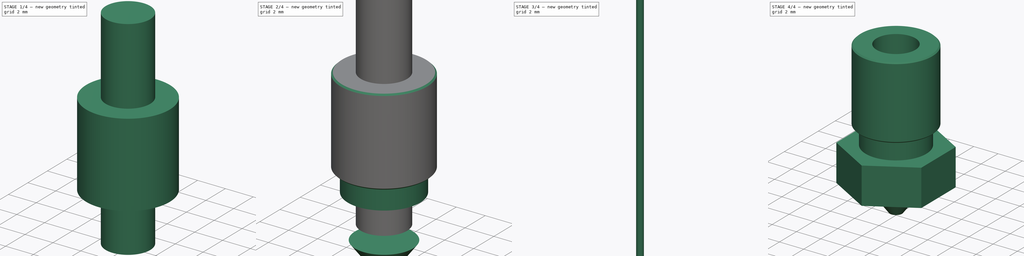
[diagram: build sequence overview — one tinted view per stage of 4, left to right]
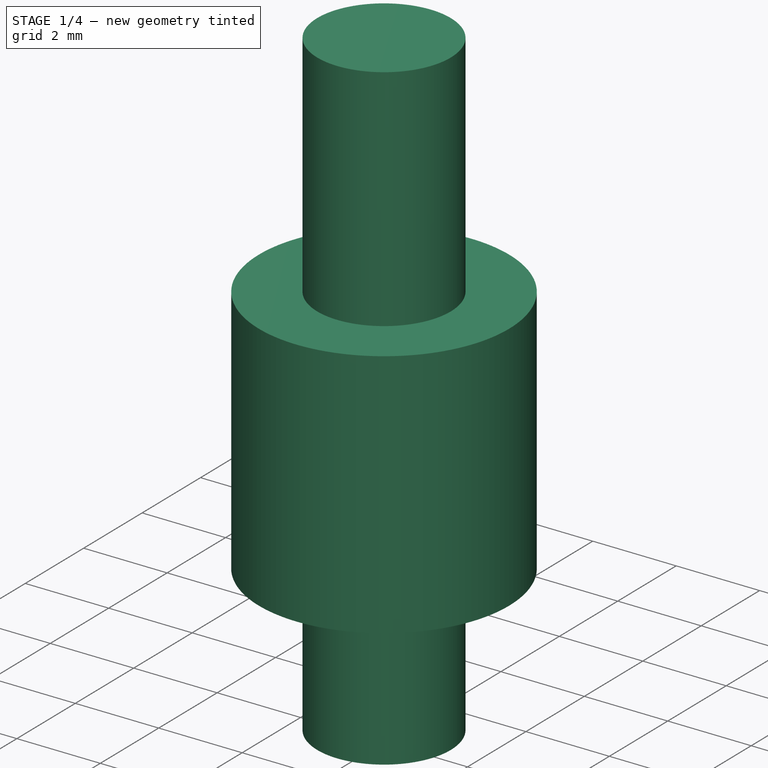
[diagram: stage 1 of 4 — iso view after this stage's code; geometry added in this stage tinted green]
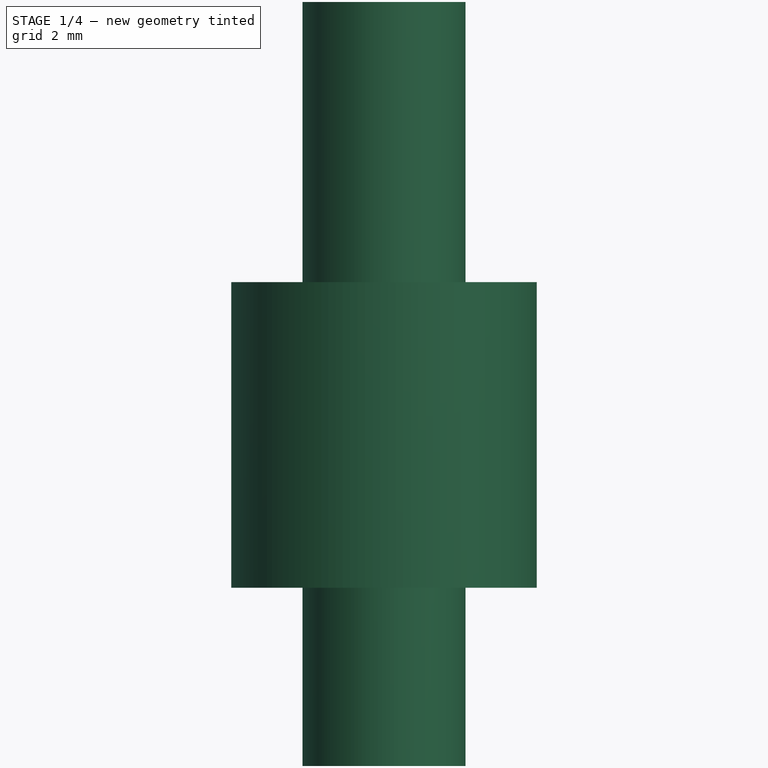
[diagram: stage 1 of 4 — front view after this stage's code; geometry added in this stage tinted green]
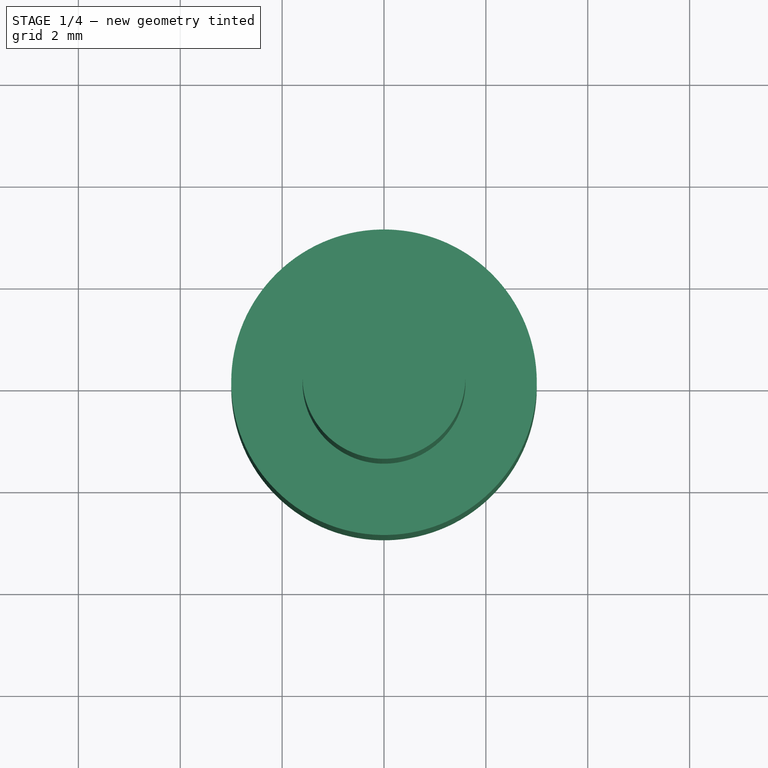
[diagram: stage 1 of 4 — top view after this stage's code; geometry added in this stage tinted green]
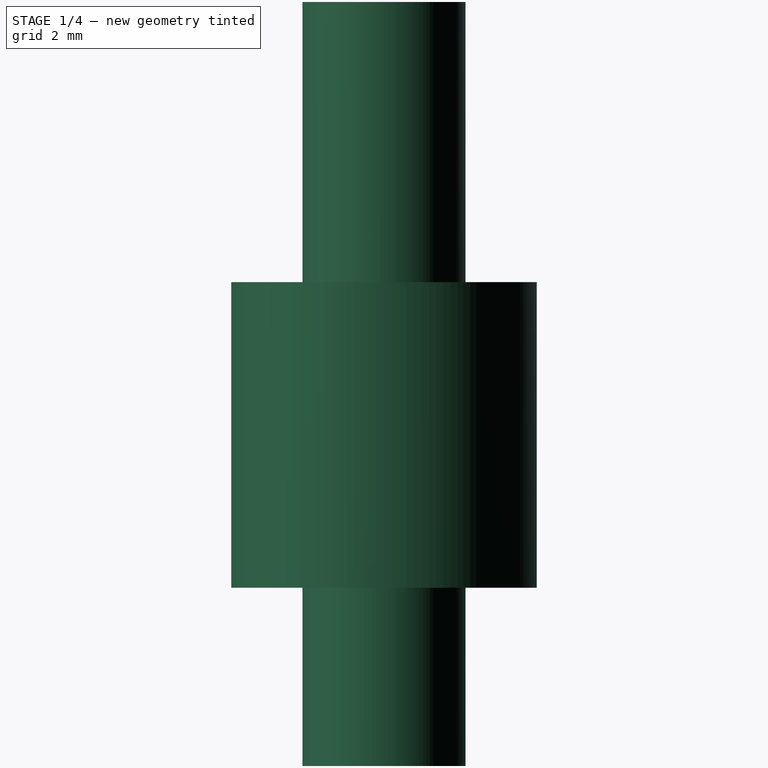
[diagram: stage 1 of 4 — right view after this stage's code; geometry added in this stage tinted green]
FCSTD DOCUMENT  (FreeCAD 0.15R4671 (Git))
Label: boquilla
License: CreativeCommons Attribution-ShareAlike
LicenseURL: http://creativecommons.org/licenses/by-sa/4.0/
objects: Part::Cylinder×4, Part::Cut×2, Sketcher::SketchObject×1, PartDesign::Pad×1, Part::Cone×1, Part::Chamfer×1, Part::MultiFuse×1, Part::Feature×1
note: 13 computed .brp shape members not serialized (recipe doc carries the construction recipe); baked Part::Feature solids carry a one-line shape summary decoded from their .brp

FEATURE [Part::Cylinder] Cylinder001  label="Cilindro001"
  Angle = 360
  Height = 6
  Placement = pos=(0,0,4.5) rot=(0,0,1;0rad)
  Radius = 3
FEATURE [Part::Cylinder] Cylinder003  label="Cilindro003"
  Angle = 360
  Height = 15
  Placement = pos=(0,0,1) rot=(0,0,1;0rad)
  Radius = 1.6
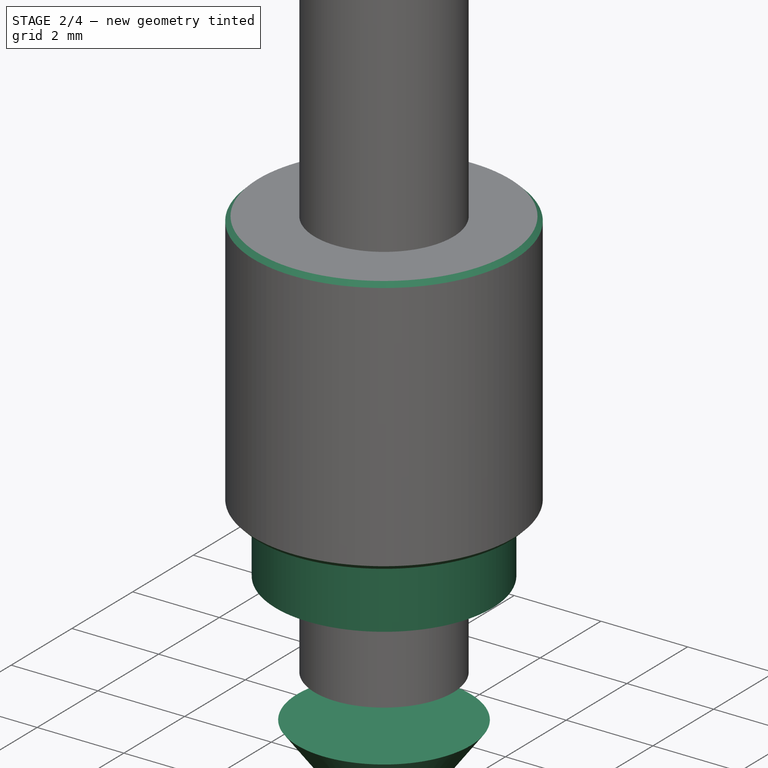
[diagram: stage 2 of 4 — iso view after this stage's code; geometry added in this stage tinted green]
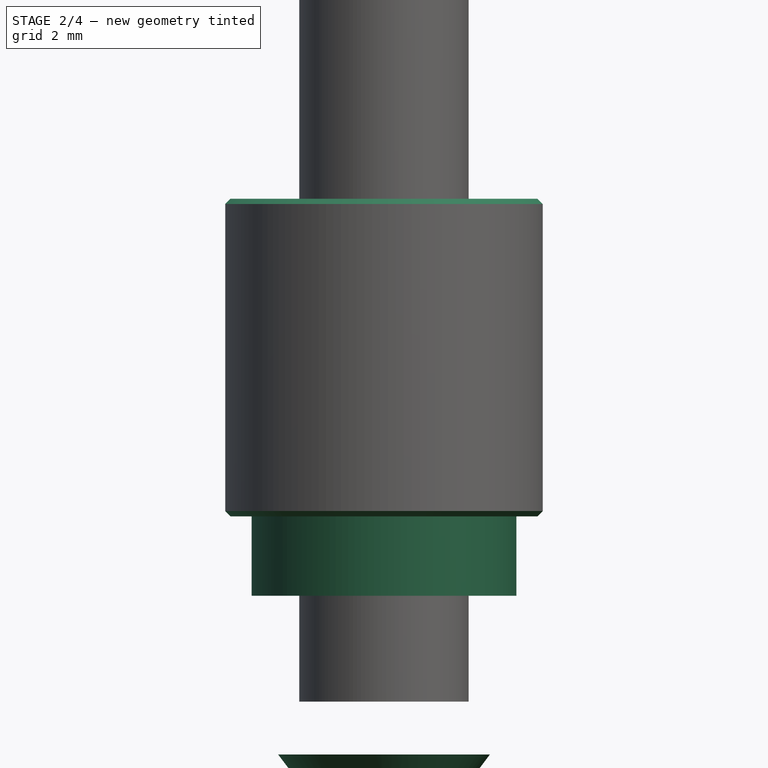
[diagram: stage 2 of 4 — front view after this stage's code; geometry added in this stage tinted green]
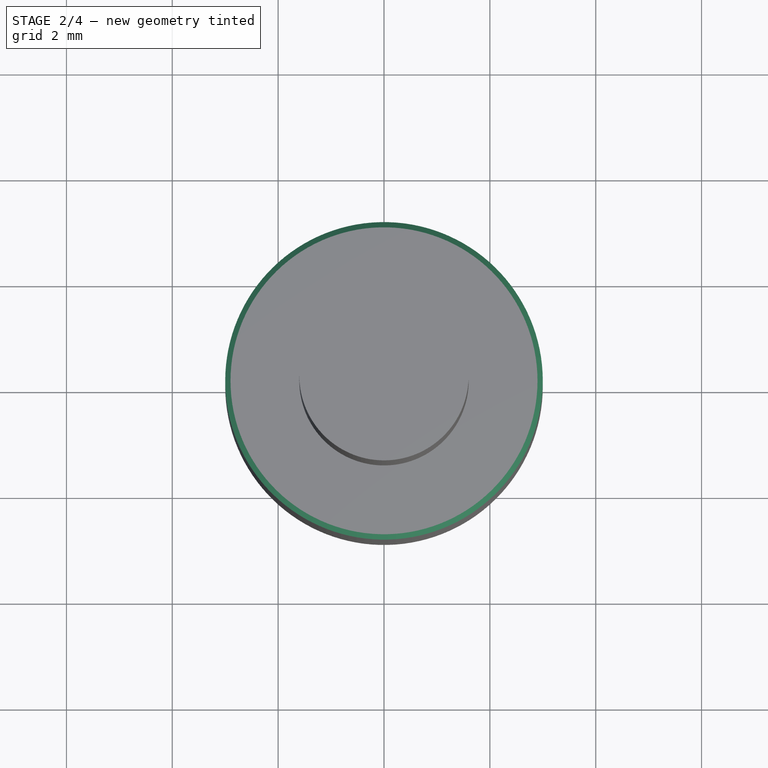
[diagram: stage 2 of 4 — top view after this stage's code; geometry added in this stage tinted green]
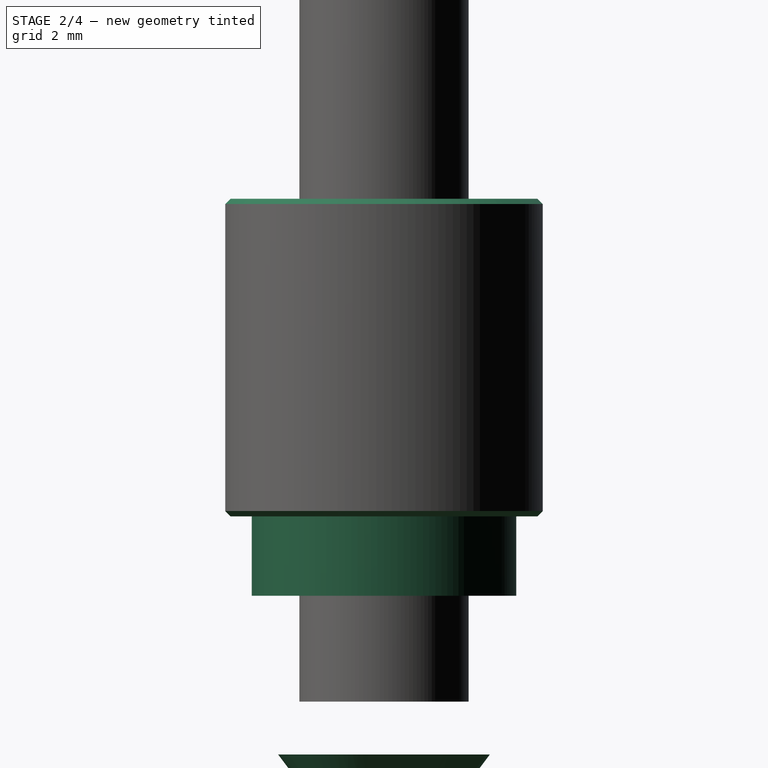
[diagram: stage 2 of 4 — right view after this stage's code; geometry added in this stage tinted green]
FEATURE [Part::Cone] Cone  label="Cono"
  Angle = 360
  Height = 2
  Placement = pos=(0,0,-2) rot=(0,0,1;0rad)
  Radius1 = 0.5
  Radius2 = 2
FEATURE [Part::Cylinder] Cylinder  label="Cilindro"
  Angle = 360
  Height = 1.5
  Placement = pos=(0,0,3) rot=(0,0,1;0rad)
  Radius = 2.5
FEATURE [Part::Chamfer] Chamfer
  Base = -> Cylinder001
  Edges = 2 edges r=0.1: [Edge1,Edge3]
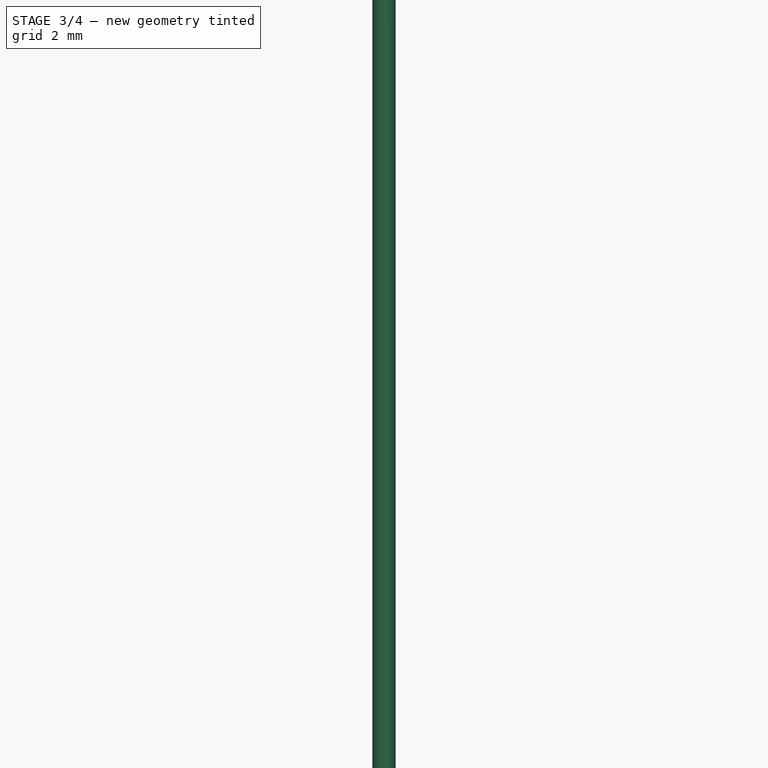
[diagram: stage 3 of 4 — iso view after this stage's code; geometry added in this stage tinted green]
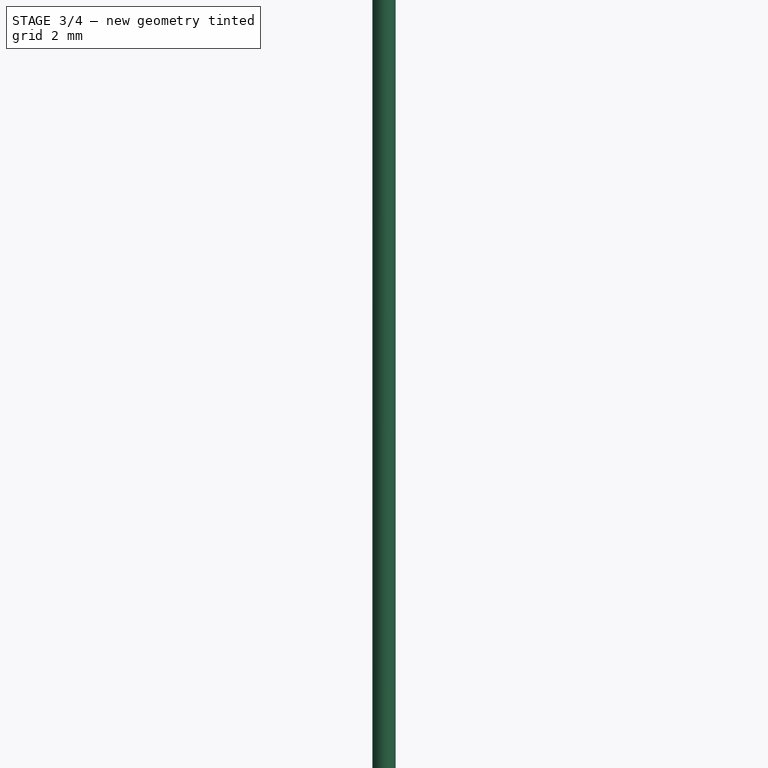
[diagram: stage 3 of 4 — front view after this stage's code; geometry added in this stage tinted green]
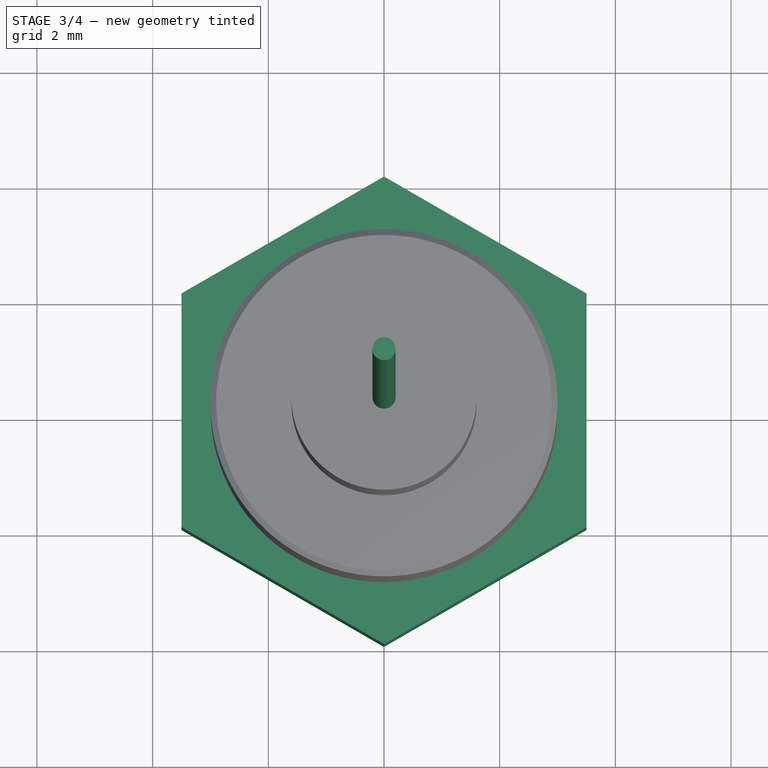
[diagram: stage 3 of 4 — top view after this stage's code; geometry added in this stage tinted green]
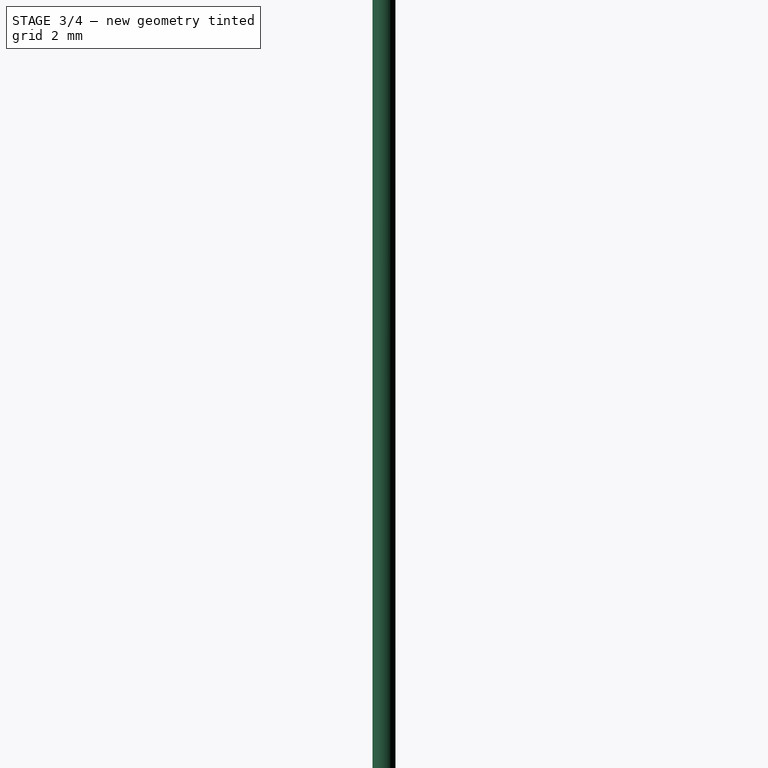
[diagram: stage 3 of 4 — right view after this stage's code; geometry added in this stage tinted green]
FEATURE [Sketcher::SketchObject] Sketch
  sketch-geometry (8):
    g0: LineSegment StartX=0 StartY=-4.04145 StartZ=0 EndX=3.5 EndY=-2.02073 EndZ=0
    g1: LineSegment StartX=3.5 StartY=-2.02073 StartZ=0 EndX=3.5 EndY=2.02073 EndZ=0
    g2: LineSegment StartX=3.5 StartY=2.02073 StartZ=0 EndX=0 EndY=4.04145 EndZ=0
    g3: LineSegment StartX=0 StartY=4.04145 StartZ=0 EndX=-3.5 EndY=2.02073 EndZ=0
    g4: LineSegment StartX=-3.5 StartY=2.02073 StartZ=0 EndX=-3.5 EndY=-2.02073 EndZ=0
    g5: LineSegment StartX=-3.5 StartY=-2.02073 StartZ=0 EndX=0 EndY=-4.04145 EndZ=0
    g6: Circle [constr] CenterX=0 CenterY=0 CenterZ=0 NormalX=0 NormalY=0 NormalZ=1 Radius=4.04145
    g7: Circle CenterX=0 CenterY=0 CenterZ=0 NormalX=0 NormalY=0 NormalZ=1 Radius=1
  constraints (18):
    c: Coincident(g0,g1)
    c: Coincident(g1,g2)
    c: Coincident(g2,g3)
    c: Coincident(g3,g4)
    c: Coincident(g4,g5)
    c: Coincident(g5,g0)
    c: Equal(g0, g1-g5) x5
    c: PointOnObject(g0,g6)
    c: PointOnObject(g1,g6)
    c: PointOnObject(g2,g6)
    c: PointOnObject(g3,g6)
    c: PointOnObject(g4,g6)
    c: PointOnObject(g5,g6)
    c: Coincident(g6,g-1)
    c: PointOnObject(g0,g-2)
    c: DistanceX(g4,g0) = 7
    c: Coincident(g7,g-1)
    c: Radius(g7) = 1
FEATURE [PartDesign::Pad] Pad
  Length = 3
  Length2 = 100
  Sketch = -> Sketch
  Type = 0
FEATURE [Part::Cylinder] Cylinder002  label="Cilindro002"
  Angle = 360
  Height = 70
  Placement = pos=(0,0,-6) rot=(0,0,1;0rad)
  Radius = 0.2
FEATURE [Part::MultiFuse] Fusion
  Shapes = -> [Chamfer,Cone,Pad,Cylinder]
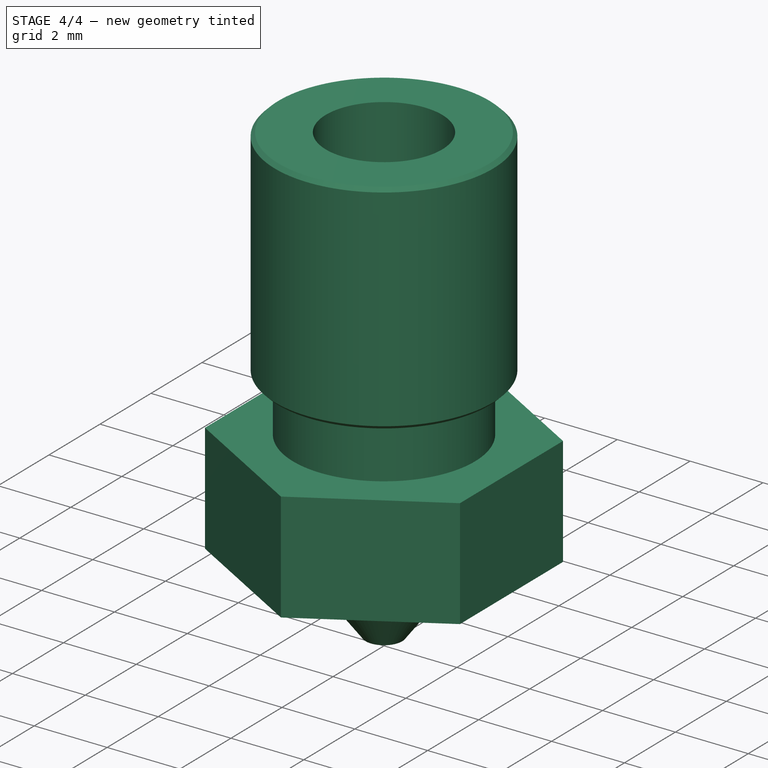
[diagram: stage 4 of 4 — iso view after this stage's code; geometry added in this stage tinted green]
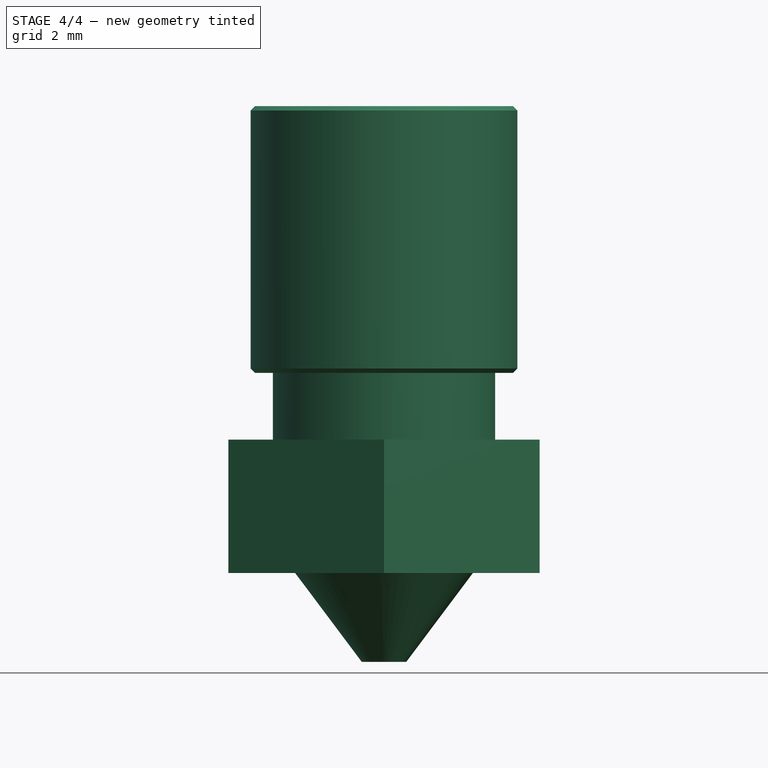
[diagram: stage 4 of 4 — front view after this stage's code; geometry added in this stage tinted green]
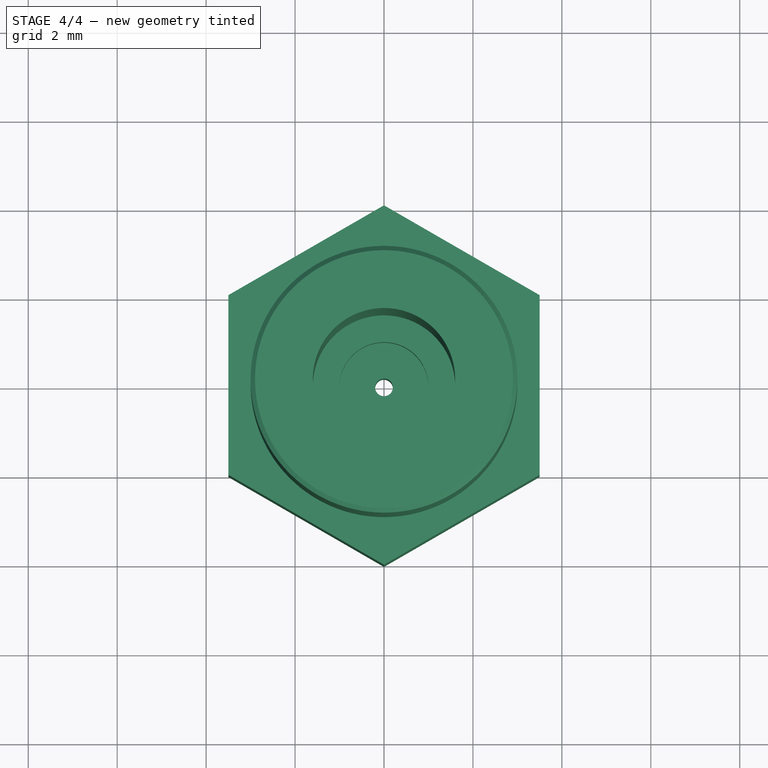
[diagram: stage 4 of 4 — top view after this stage's code; geometry added in this stage tinted green]
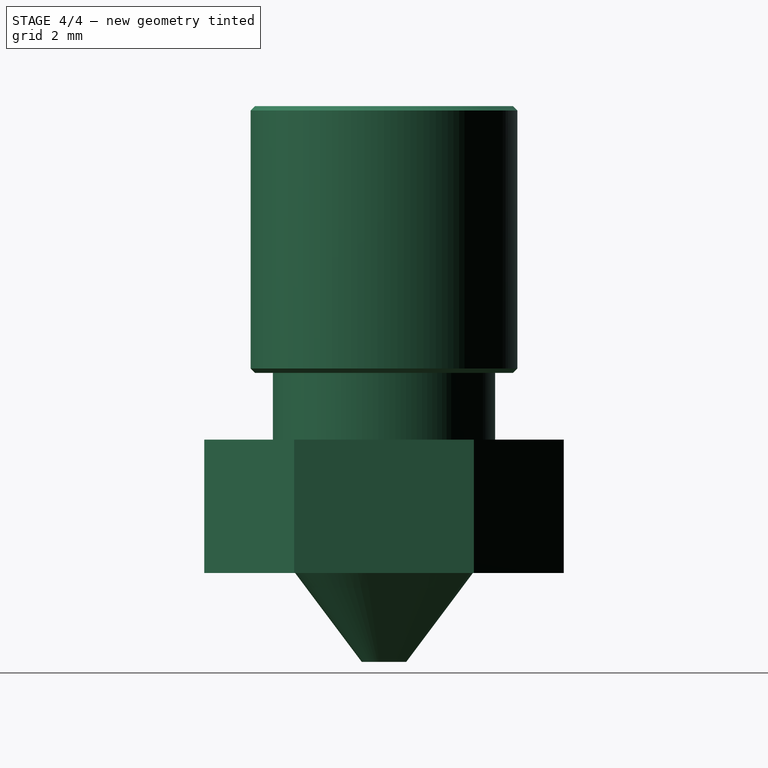
[diagram: stage 4 of 4 — right view after this stage's code; geometry added in this stage tinted green]
FEATURE [Part::Cut] Cut
  Base = -> Fusion
  Tool = -> Cylinder002
FEATURE [Part::Cut] Cut001
  Base = -> Cut
  Tool = -> Cylinder003
FEATURE [Part::Feature] Cut001001  label="boquilla"
  shape: bbox 7 x 8.083 x 12.5 mm, 21 faces (baked)
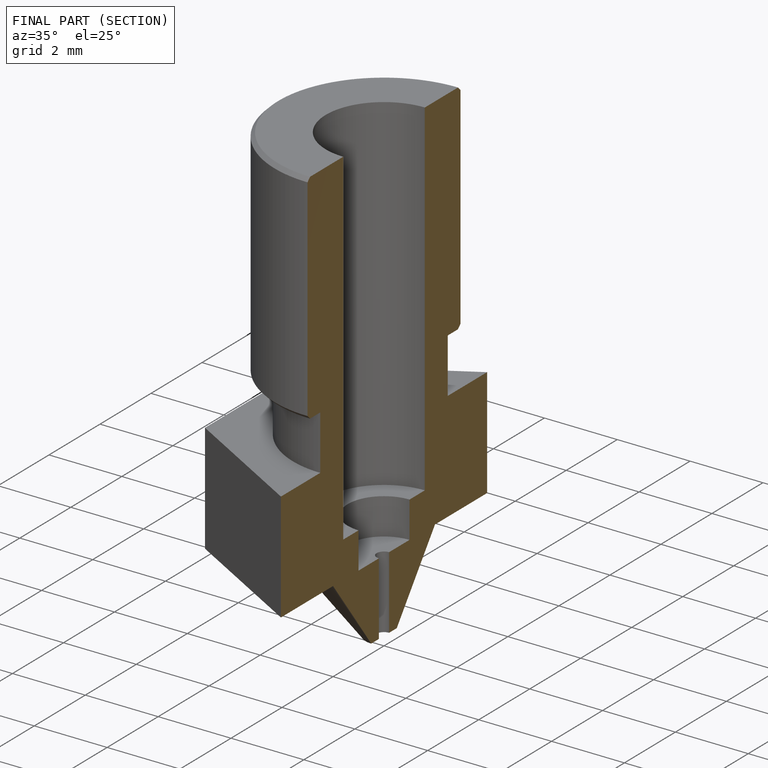
[diagram: finished part — half-section view (interior)]
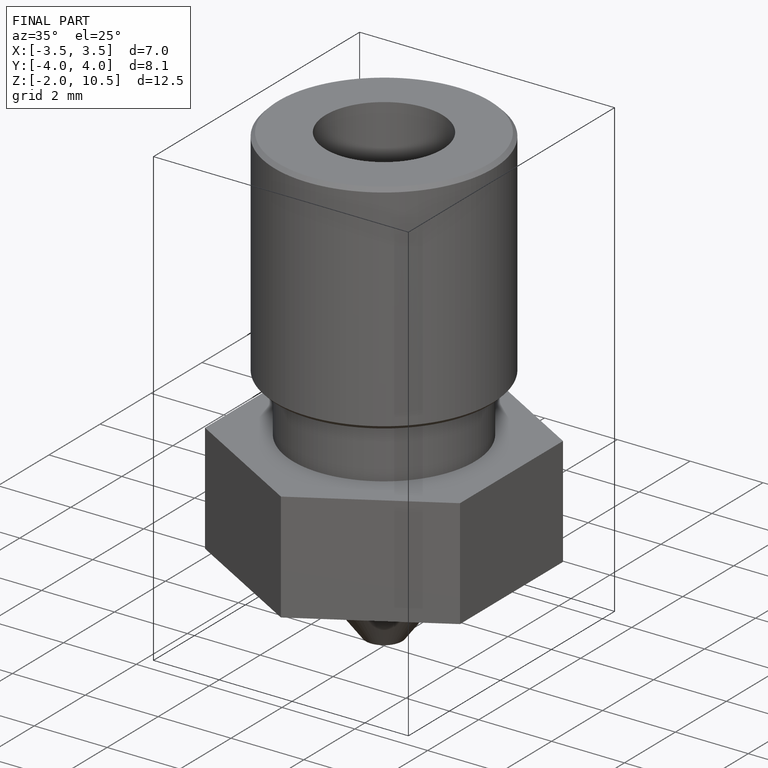
[diagram: finished part — iso view with bounding-box wireframe]
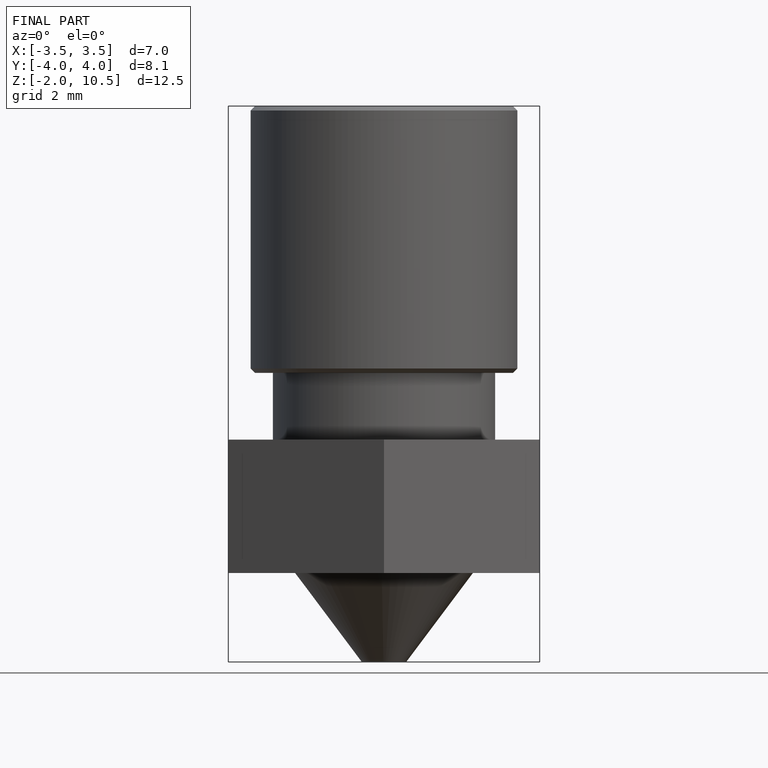
[diagram: finished part — front view with bounding-box wireframe]
